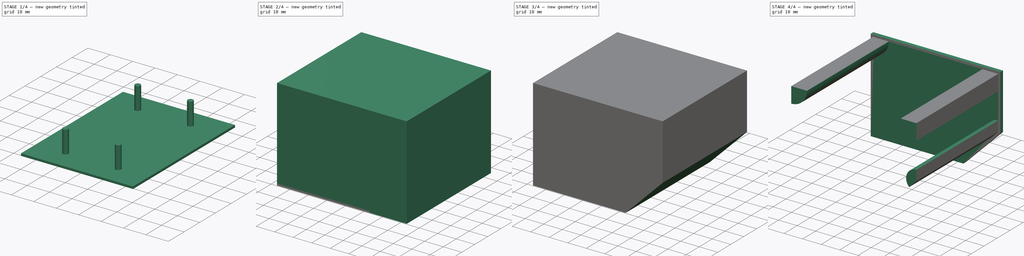
[diagram: build sequence overview — one tinted view per stage of 4, left to right]
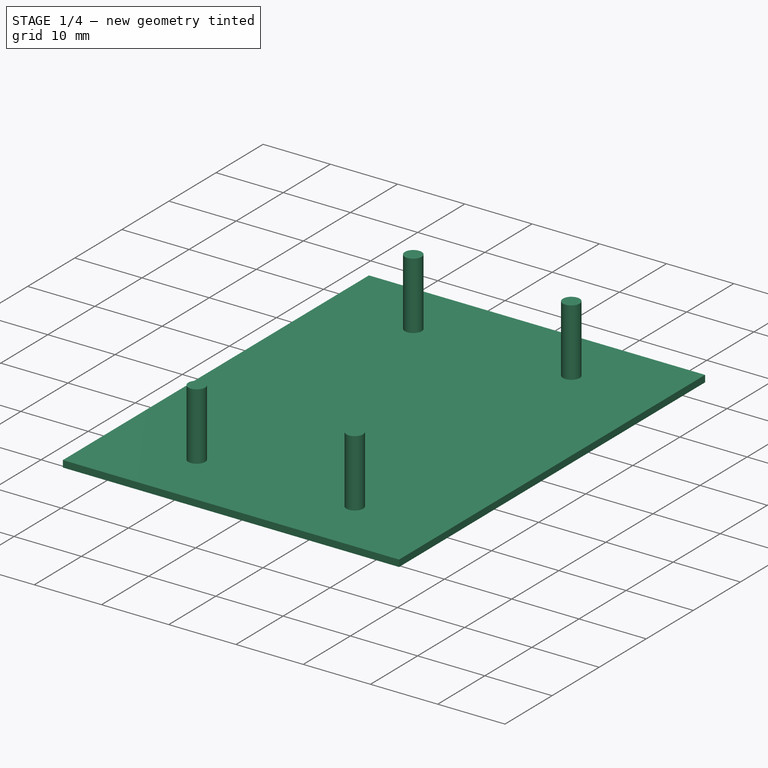
[diagram: stage 1 of 4 — iso view after this stage's code; geometry added in this stage tinted green]
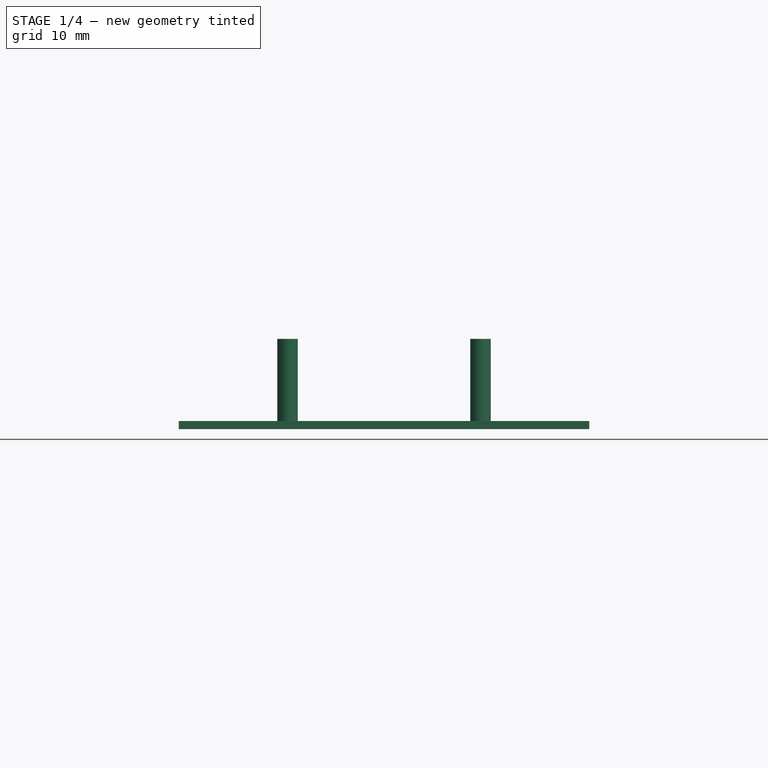
[diagram: stage 1 of 4 — front view after this stage's code; geometry added in this stage tinted green]
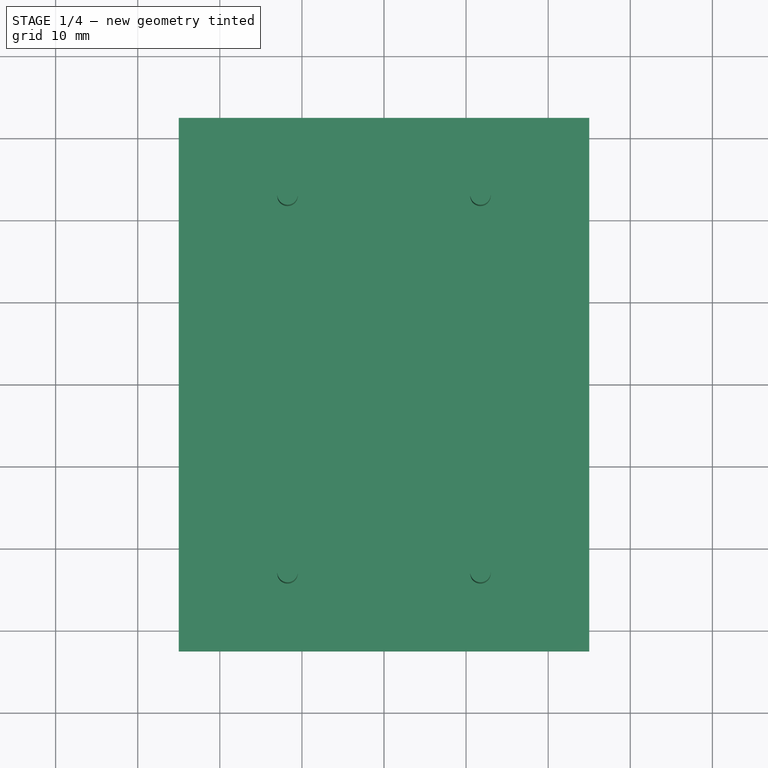
[diagram: stage 1 of 4 — top view after this stage's code; geometry added in this stage tinted green]
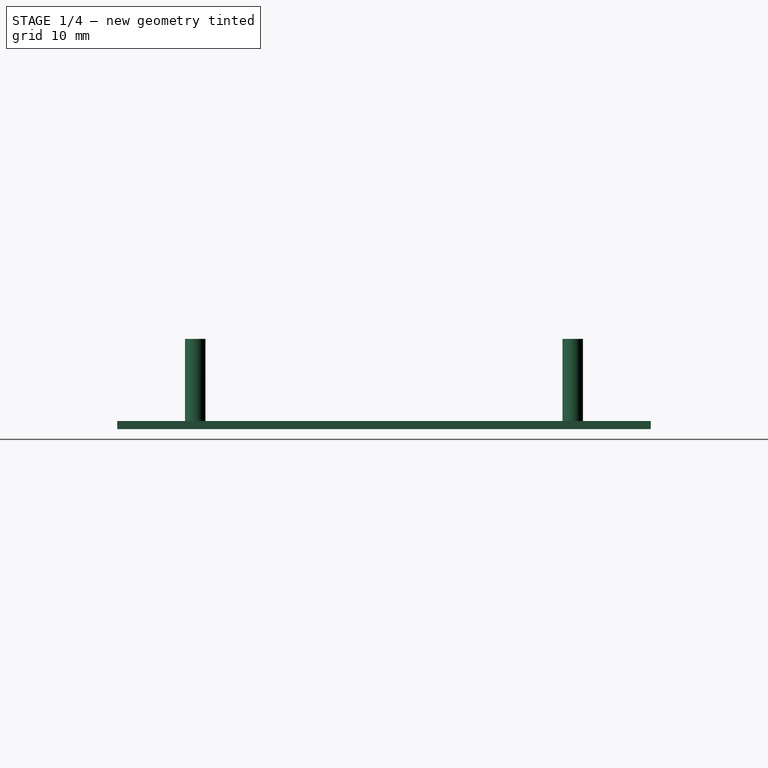
[diagram: stage 1 of 4 — right view after this stage's code; geometry added in this stage tinted green]
FCSTD DOCUMENT  (FreeCAD 0.21R33771 (Git))
Label: puszka esp32
License: All rights reserved
LicenseURL: http://en.wikipedia.org/wiki/All_rights_reserved
objects: Sketcher::SketchObject×9, PartDesign::Pad×9, PartDesign::Plane×2, PartDesign::Body×2, PartDesign::Pocket×1, PartDesign::ShapeBinder×1
note: 34 computed .brp shape members not serialized (recipe doc carries the construction recipe); baked Part::Feature solids carry a one-line shape summary decoded from their .brp

FEATURE [Sketcher::SketchObject] Sketch
  FullyConstrained = true
  MapMode = 5
  Support = -> [XY_Plane]
  sketch-geometry (4):
    g0: Circle CenterX=-11.75 CenterY=23 CenterZ=0 NormalX=0 NormalY=0 NormalZ=1 AngleXU=0 Radius=1.25
    g1: Circle CenterX=11.75 CenterY=23 CenterZ=0 NormalX=0 NormalY=0 NormalZ=1 AngleXU=0 Radius=1.25
    g2: Circle CenterX=-11.75 CenterY=-23 CenterZ=0 NormalX=0 NormalY=0 NormalZ=1 AngleXU=0 Radius=1.25
    g3: Circle CenterX=11.75 CenterY=-23 CenterZ=0 NormalX=0 NormalY=0 NormalZ=1 AngleXU=0 Radius=1.25
  constraints (10):
    c: DistanceX(g0,g1) = 23.5
    c: Horizontal(g0,g1)
    c: Equal(g0,g1)
    c: Equal(g2,g3)
    c: Symmetric(g3,g0,g-1)
    c: Symmetric(g2,g1,g-1)
    c: Vertical(g1,g3)
    c: DistanceY(g3,g1) = 46
    c: Equal(g1,g2)
    c: Diameter(g0) = 2.5
FEATURE [Sketcher::SketchObject] Sketch001
  FullyConstrained = true
  MapMode = 5
  Support = -> [XY_Plane]
  sketch-geometry (5):
    g0: LineSegment StartX=-25 StartY=-32.5 StartZ=0 EndX=-25 EndY=32.5 EndZ=0
    g1: LineSegment StartX=-25 StartY=32.5 StartZ=0 EndX=25 EndY=32.5 EndZ=0
    g2: LineSegment StartX=25 StartY=32.5 StartZ=0 EndX=25 EndY=-32.5 EndZ=0
    g3: LineSegment StartX=25 StartY=-32.5 StartZ=0 EndX=-25 EndY=-32.5 EndZ=0
    g4: GeomPoint X=0 Y=0 Z=0
  constraints (12):
    c: Coincident(g0,g1)
    c: Coincident(g1,g2)
    c: Coincident(g2,g3)
    c: Coincident(g3,g0)
    c: Horizontal(g1)
    c: Horizontal(g3)
    c: Vertical(g0)
    c: Vertical(g2)
    c: Symmetric(g1,g0,g4)
    c: Coincident(g4,g-1)
    c: Distance(g2) = 65
    c: Distance(g1) = 50
FEATURE [PartDesign::Pad] Pad
  Direction = (0,0,1)
  Length = 1
  Length2 = 10
  Profile = -> Sketch001
  ReferenceAxis = -> Sketch001 [N_Axis]
  Reversed = true
  Type = 0
FEATURE [PartDesign::Pad] Pad001
  BaseFeature = -> Pad
  Direction = (0,0,1)
  Length = 10
  Length2 = 10
  Profile = -> Sketch
  ReferenceAxis = -> Sketch [N_Axis]
  Type = 0
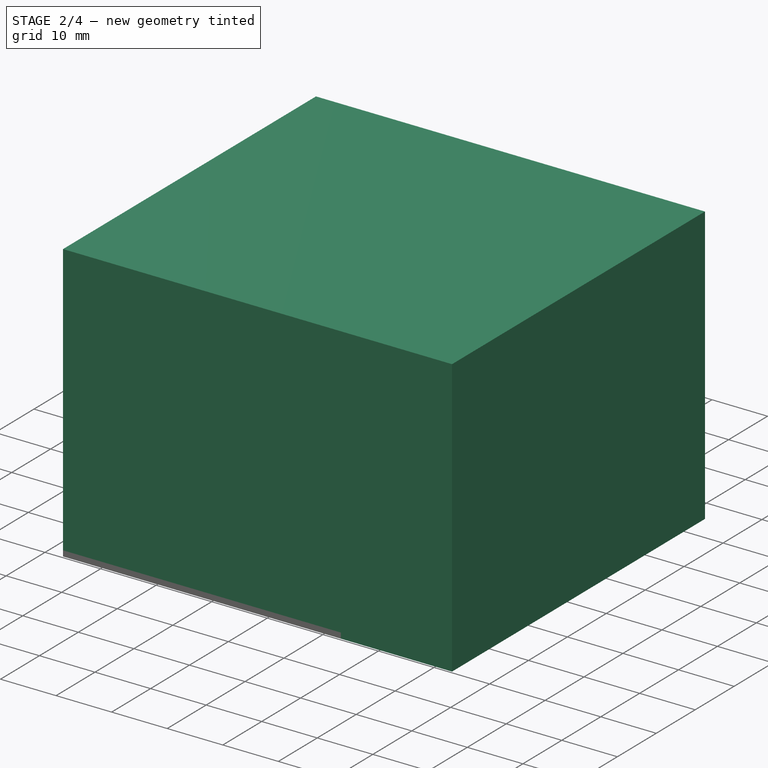
[diagram: stage 2 of 4 — iso view after this stage's code; geometry added in this stage tinted green]
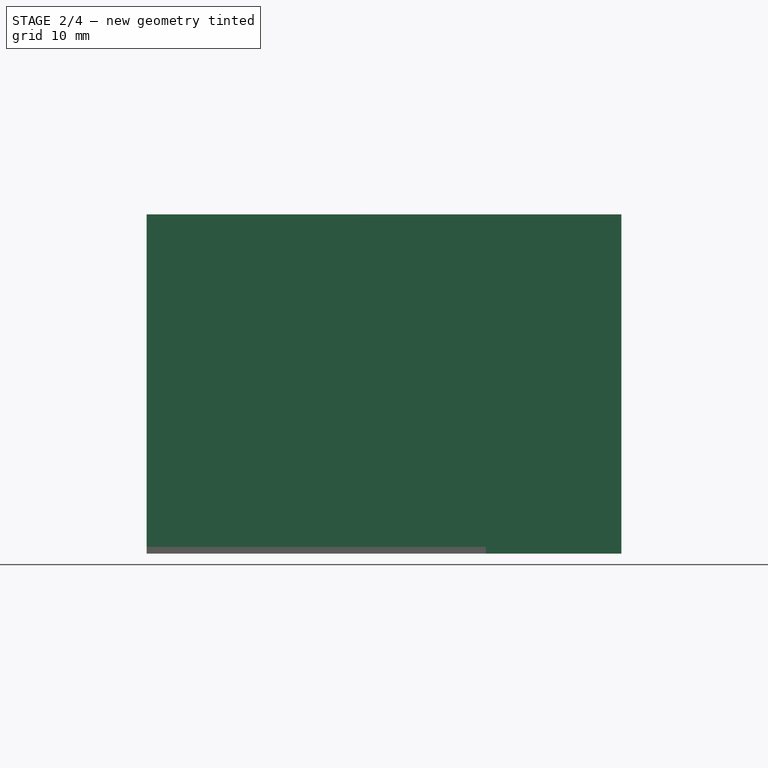
[diagram: stage 2 of 4 — front view after this stage's code; geometry added in this stage tinted green]
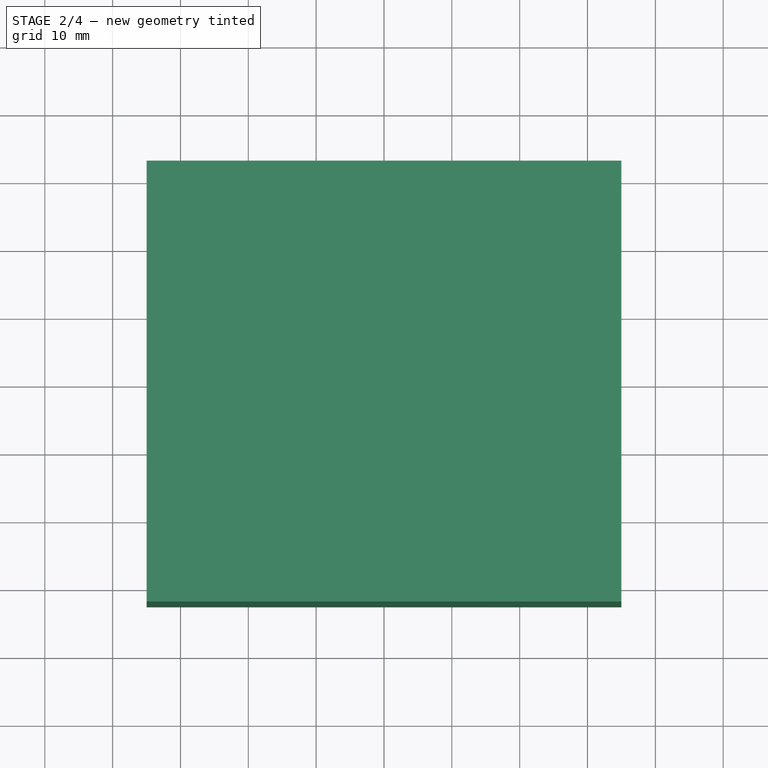
[diagram: stage 2 of 4 — top view after this stage's code; geometry added in this stage tinted green]
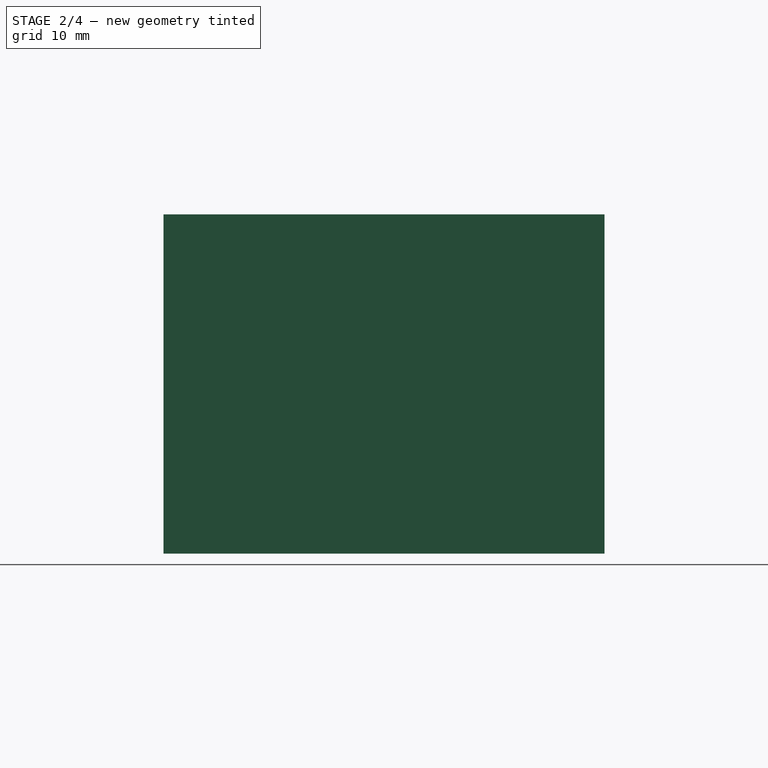
[diagram: stage 2 of 4 — right view after this stage's code; geometry added in this stage tinted green]
FEATURE [PartDesign::Plane] DatumPlane
  AttachmentOffset = pos=(0,0,12) rot=(0,0,1;0rad)
  Length = 83.4907
  MapMode = 5
  Placement = pos=(0,0,12) rot=(0,0,1;0rad)
  ResizeMode = 0
  Support = -> [Pad001]
  Width = 78.4907
FEATURE [PartDesign::Pad] Pad002
  BaseFeature = -> Pad001
  Direction = (1,0,0)
  Length = 20
  Length2 = 10
  Profile = -> Pad001 [Face6]
  Type = 0
FEATURE [Sketcher::SketchObject] Sketch002
  ExternalGeometry = -> [Pad002]
  FullyConstrained = false
  MapMode = 5
  Support = -> [Pad002]
  sketch-geometry (8):
    g0: LineSegment StartX=-25 StartY=-32.5 StartZ=0 EndX=45 EndY=-32.5 EndZ=0
    g1: LineSegment StartX=45 StartY=-32.5 StartZ=0 EndX=45 EndY=32.5 EndZ=0
    g2: LineSegment StartX=45 StartY=32.5 StartZ=0 EndX=44 EndY=32.5 EndZ=0
    g3: LineSegment StartX=-25 StartY=32.5 StartZ=0 EndX=-25 EndY=-32.5 EndZ=0
    g4: LineSegment StartX=-24 StartY=-31.5 StartZ=0 EndX=44 EndY=-31.5 EndZ=0
    g5: LineSegment StartX=44 StartY=-31.5 StartZ=0 EndX=44 EndY=32.5 EndZ=0
    g6: LineSegment StartX=-24 StartY=32.5 StartZ=0 EndX=-24 EndY=-31.5 EndZ=0
    g7: LineSegment StartX=-24 StartY=32.5 StartZ=0 EndX=-25 EndY=32.5 EndZ=0
  constraints (20):
    c: Coincident(g0,g1)
    c: Coincident(g1,g2)
    c: Coincident(g7,g3)
    c: Coincident(g3,g0)
    c: Horizontal(g0)
    c: Horizontal(g2)
    c: Vertical(g1)
    c: Vertical(g3)
    c: Coincident(g0,g-3)
    c: Coincident(g4,g5)
    c: Coincident(g6,g4)
    c: Horizontal(g4)
    c: Vertical(g5)
    c: Vertical(g6)
    c: Distance(g4,g3) = 1
    c: PointOnObject(g6,g2)
    c: Distance(g4,g1) = 1
    c: Distance(g4,g0) = 1
    c: PointOnObject(g7,g6)
    c: PointOnObject(g2,g5)
FEATURE [PartDesign::Pad] Pad003
  BaseFeature = -> Pad002
  Direction = (0,0,1)
  Length = 48
  Length2 = 10
  Profile = -> Sketch002
  ReferenceAxis = -> Sketch002 [N_Axis]
  Type = 0
FEATURE [Sketcher::SketchObject] Sketch003
  ExternalGeometry = -> [Pad003]
  FullyConstrained = true
  MapMode = 5
  Placement = pos=(0,0,48) rot=(0,0,1;0rad)
  Support = -> [Pad003]
  sketch-geometry (4):
    g0: LineSegment StartX=45 StartY=32.5 StartZ=0 EndX=-25 EndY=32.5 EndZ=0
    g1: LineSegment StartX=-25 StartY=32.5 StartZ=0 EndX=-25 EndY=-32.5 EndZ=0
    g2: LineSegment StartX=-25 StartY=-32.5 StartZ=0 EndX=45 EndY=-32.5 EndZ=0
    g3: LineSegment StartX=45 StartY=-32.5 StartZ=0 EndX=45 EndY=32.5 EndZ=0
  constraints (10):
    c: Coincident(g0,g1)
    c: Coincident(g1,g2)
    c: Coincident(g2,g3)
    c: Coincident(g3,g0)
    c: Horizontal(g0)
    c: Horizontal(g2)
    c: Vertical(g1)
    c: Vertical(g3)
    c: Coincident(g0,g-3)
    c: Coincident(g1,g-4)
FEATURE [PartDesign::Pad] Pad004
  BaseFeature = -> Pad003
  Direction = (0,0,1)
  Length = 1
  Length2 = 10
  Profile = -> Sketch003
  ReferenceAxis = -> Sketch003 [N_Axis]
  Type = 0
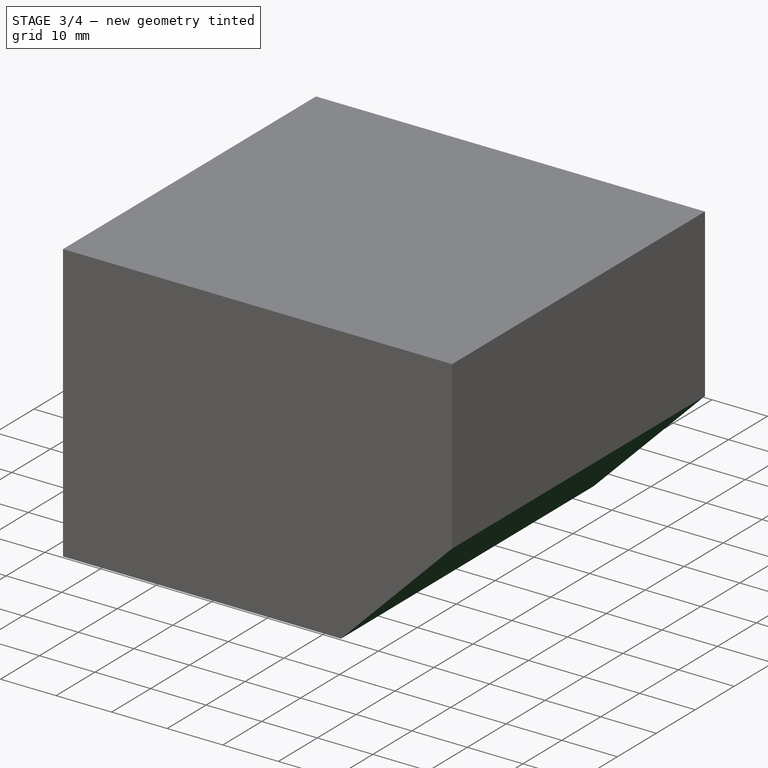
[diagram: stage 3 of 4 — iso view after this stage's code; geometry added in this stage tinted green]
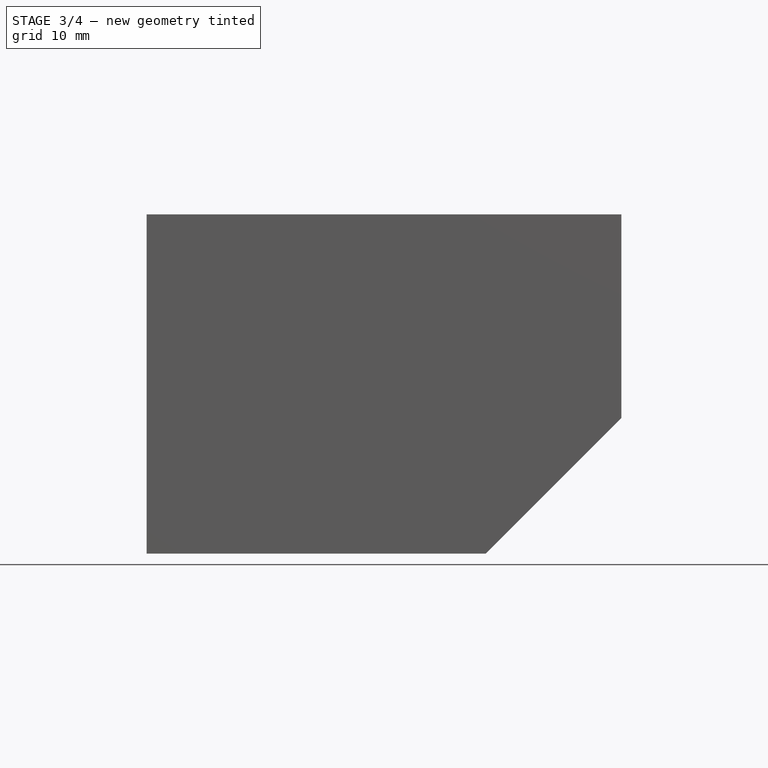
[diagram: stage 3 of 4 — front view after this stage's code; geometry added in this stage tinted green]
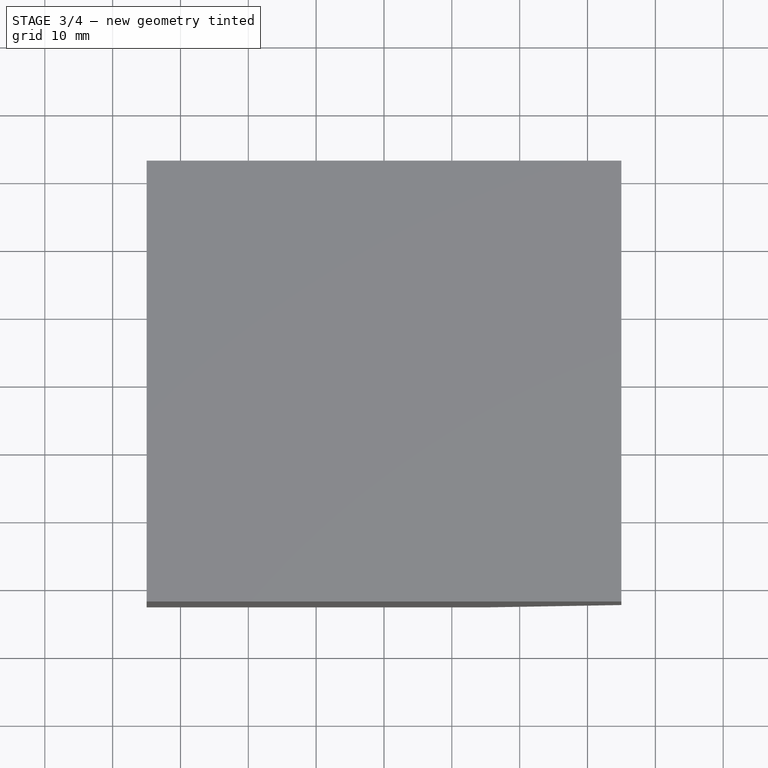
[diagram: stage 3 of 4 — top view after this stage's code; geometry added in this stage tinted green]
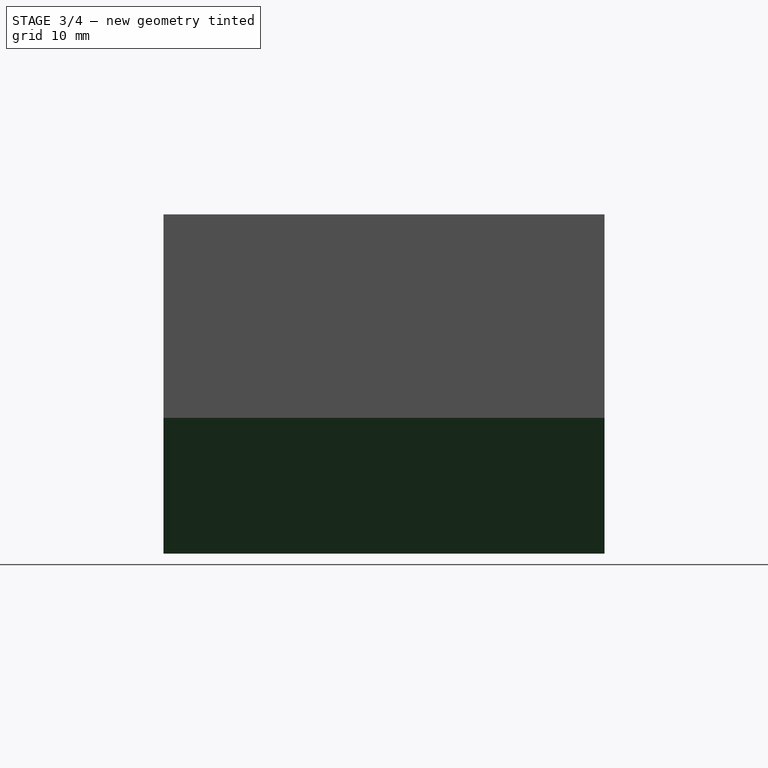
[diagram: stage 3 of 4 — right view after this stage's code; geometry added in this stage tinted green]
FEATURE [Sketcher::SketchObject] Sketch004
  ExternalGeometry = -> [Pad004]
  FullyConstrained = true
  MapMode = 5
  Placement = pos=(0,-32.5,0) rot=(1,0,0;1.5708rad)
  Support = -> [Pad004]
  sketch-geometry (3):
    g0: LineSegment StartX=25 StartY=-1 StartZ=0 EndX=45 EndY=19 EndZ=0
    g1: LineSegment StartX=45 StartY=19 StartZ=0 EndX=45 EndY=-1 EndZ=0
    g2: LineSegment StartX=45 StartY=-1 StartZ=0 EndX=25 EndY=-1 EndZ=0
  constraints (7):
    c: Coincident(g-3,g0)
    c: PointOnObject(g0,g-4)
    c: Coincident(g0,g1)
    c: Coincident(g1,g-3)
    c: Coincident(g1,g2)
    c: Coincident(g2,g0)
    c: Angle(g0,g1) = 0.785398
FEATURE [PartDesign::Pocket] Pocket
  BaseFeature = -> Pad004
  Direction = (0,1,-2e-16)
  Length = 5
  Length2 = 5
  Profile = -> Sketch004
  ReferenceAxis = -> Sketch004 [N_Axis]
  Type = 1
FEATURE [Sketcher::SketchObject] Sketch005
  ExternalGeometry = -> [Pocket]
  FullyConstrained = true
  MapMode = 5
  Placement = pos=(0,-31.5,0) rot=(0,0.707107,0.707107;3.14159rad)
  Support = -> [Pocket]
  sketch-geometry (4):
    g0: LineSegment StartX=-44 StartY=18 StartZ=0 EndX=-26 EndY=1.42e-14 EndZ=0
    g1: LineSegment StartX=-26 StartY=1.42e-14 StartZ=0 EndX=-24.5858 EndY=1.42e-14 EndZ=0
    g2: LineSegment StartX=-24.5858 StartY=1.42e-14 StartZ=0 EndX=-44 EndY=19.4142 EndZ=0
    g3: LineSegment StartX=-44 StartY=19.4142 StartZ=0 EndX=-44 EndY=18 EndZ=0
  constraints (10):
    c: Coincident(g-3,g0)
    c: Coincident(g0,g-5)
    c: Coincident(g0,g1)
    c: PointOnObject(g1,g-4)
    c: Coincident(g1,g2)
    c: PointOnObject(g2,g-3)
    c: Coincident(g2,g3)
    c: Coincident(g3,g0)
    c: Parallel(g2,g0)
    c: Distance(g0,g2) = 1
FEATURE [PartDesign::Pad] Pad005
  BaseFeature = -> Pocket
  Direction = (0,1,-2e-16)
  Length = 64
  Length2 = 10
  Profile = -> Sketch005
  ReferenceAxis = -> Sketch005 [N_Axis]
  Type = 0
FEATURE [Sketcher::SketchObject] Sketch006
  ExternalGeometry = -> [Pad005]
  FullyConstrained = false
  MapMode = 5
  Placement = pos=(0,-31.5,0) rot=(0,0.707107,0.707107;3.14159rad)
  Support = -> [Pad005]
  sketch-geometry (13):
    g0: LineSegment StartX=-10 StartY=48 StartZ=0 EndX=-10 EndY=33.9904 EndZ=0
    g1: ArcOfCircle CenterX=-44 CenterY=19.4142 CenterZ=0 NormalX=0 NormalY=0 NormalZ=1 AngleXU=0 Radius=8 StartAngle=5.49779 EndAngle=7.85398
    g2: ArcOfCircle CenterX=-44 CenterY=19.4142 CenterZ=0 NormalX=0 NormalY=0 NormalZ=1 AngleXU=0 Radius=6 StartAngle=5.49779 EndAngle=7.85398
    g3: LineSegment StartX=-39.7574 StartY=15.1716 StartZ=0 EndX=-38.3431 EndY=13.7574 EndZ=0
    g4: LineSegment StartX=-44 StartY=25.4142 StartZ=0 EndX=-44 EndY=27.4142 EndZ=0
    g5: ArcOfCircle CenterX=-44 CenterY=48 CenterZ=0 NormalX=0 NormalY=0 NormalZ=1 AngleXU=0 Radius=11 StartAngle=4.71239 EndAngle=6.28319
    g6: ArcOfCircle CenterX=-44 CenterY=48 CenterZ=0 NormalX=0 NormalY=0 NormalZ=1 AngleXU=0 Radius=9 StartAngle=4.71239 EndAngle=6.28319
    g7: LineSegment StartX=-44 StartY=39 StartZ=0 EndX=-44 EndY=37 EndZ=0
    g8: LineSegment StartX=-35 StartY=48 StartZ=0 EndX=-33 EndY=48 EndZ=0
    g9: ArcOfCircle CenterX=24 CenterY=48 CenterZ=0 NormalX=0 NormalY=0 NormalZ=1 AngleXU=0 Radius=11 StartAngle=3.14159 EndAngle=4.71239
    g10: ArcOfCircle CenterX=24 CenterY=48 CenterZ=0 NormalX=0 NormalY=0 NormalZ=1 AngleXU=0 Radius=9 StartAngle=3.14159 EndAngle=4.71239
    g11: LineSegment StartX=24 StartY=39 StartZ=0 EndX=24 EndY=37 EndZ=0
    g12: LineSegment StartX=15 StartY=48 StartZ=0 EndX=13 EndY=48 EndZ=0
  constraints (29):
    c: Vertical(g0)
    c: PointOnObject(g1,g-3)
    c: Radius(g1) = 8
    c: Coincident(g2,g1)
    c: PointOnObject(g2,g-3)
    c: Coincident(g3,g2)
    c: Coincident(g3,g1)
    c: Coincident(g4,g2)
    c: Coincident(g4,g1)
    c: Distance(g4) = 2
    c: Coincident(g5,g-6)
    c: PointOnObject(g5,g-5)
    c: PointOnObject(g5,g-6)
    c: Coincident(g6,g5)
    c: PointOnObject(g6,g-5)
    c: PointOnObject(g6,g-6)
    c: Coincident(g7,g6)
    c: Coincident(g7,g5)
    c: Coincident(g8,g6)
    c: Coincident(g8,g5)
    c: Distance(g8) = 2
    c: Radius(g6) = 9
    c: Coincident(g10,g9)
    c: Coincident(g11,g10)
    c: Coincident(g11,g9)
    c: Coincident(g12,g10)
    c: Coincident(g12,g9)
    c: Distance(g12) = 2
    c: Radius(g10) = 9
FEATURE [PartDesign::Pad] Pad006
  BaseFeature = -> Pad005
  Direction = (0,1,-2e-16)
  Length = 64
  Length2 = 10
  Profile = -> Sketch006
  ReferenceAxis = -> Sketch006 [N_Axis]
  Type = 0
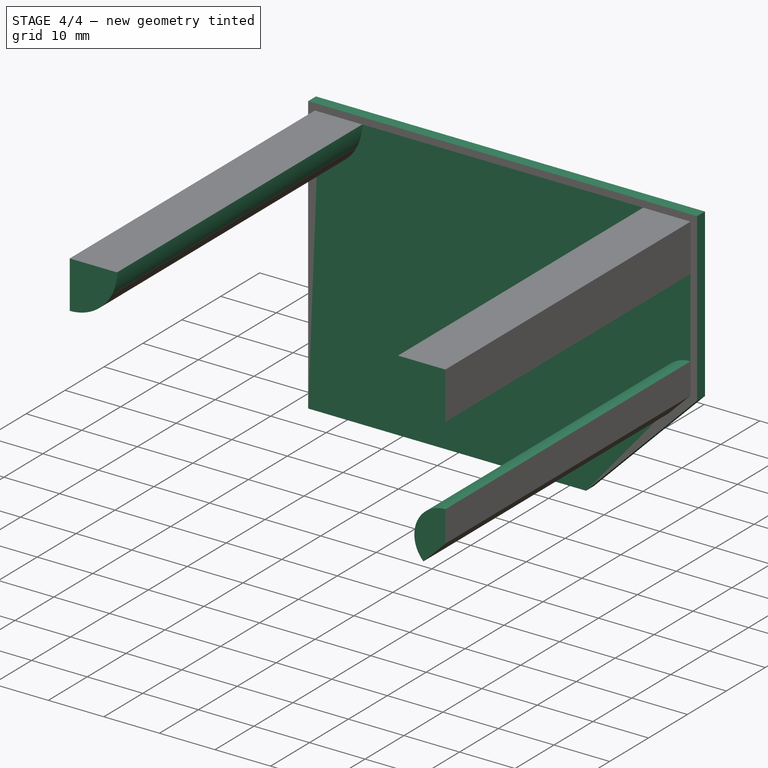
[diagram: stage 4 of 4 — iso view after this stage's code; geometry added in this stage tinted green]
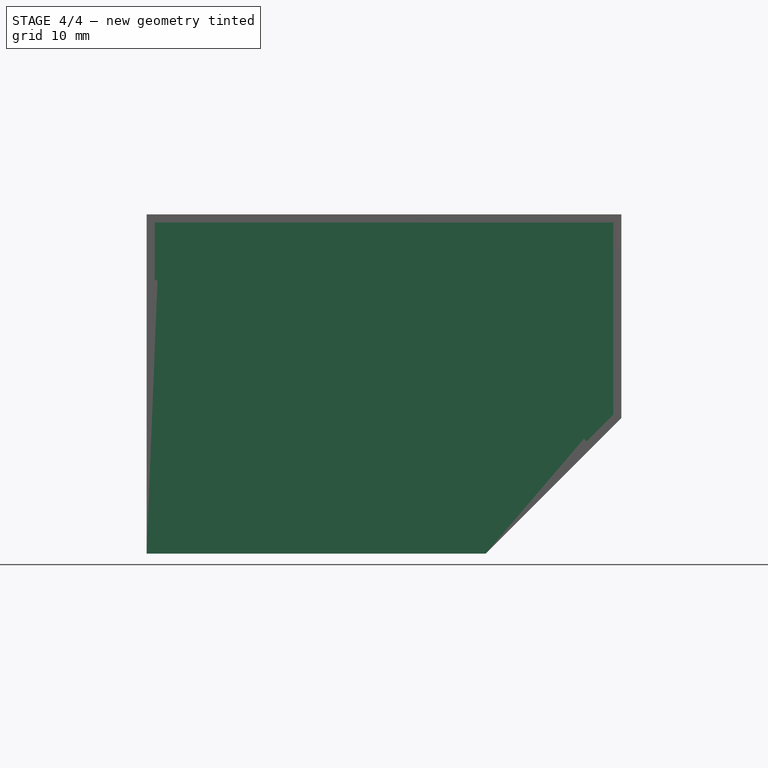
[diagram: stage 4 of 4 — front view after this stage's code; geometry added in this stage tinted green]
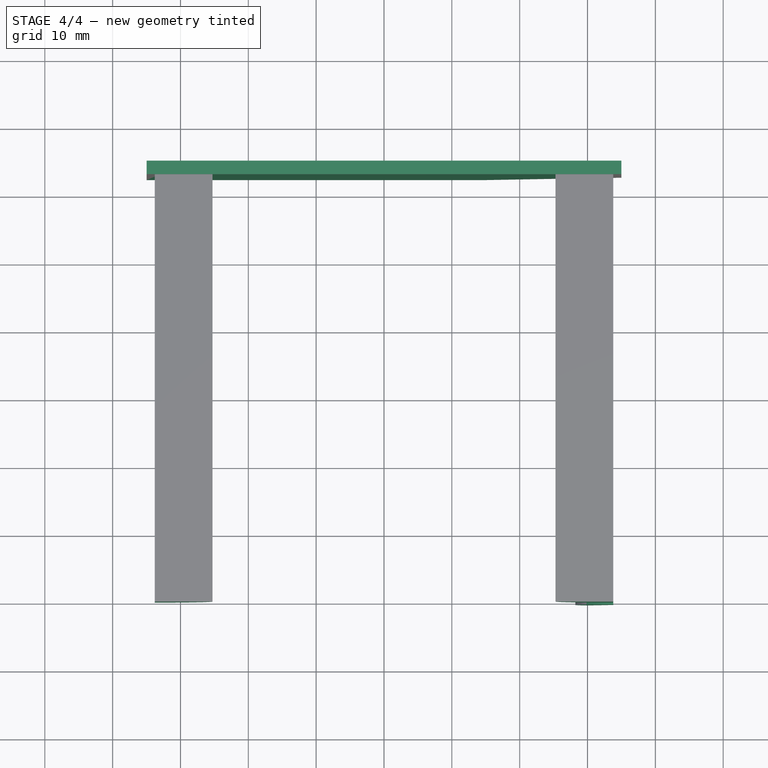
[diagram: stage 4 of 4 — top view after this stage's code; geometry added in this stage tinted green]
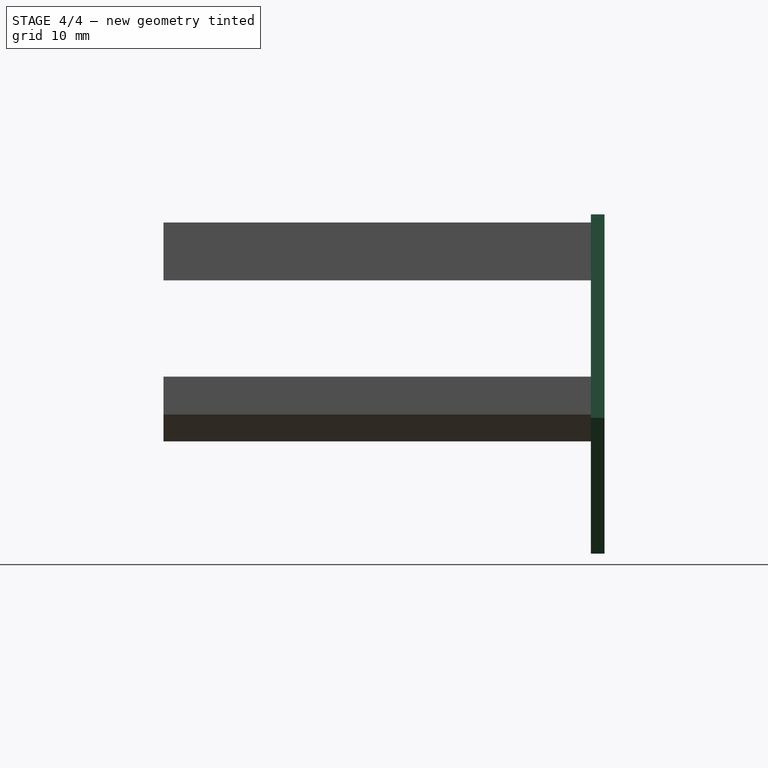
[diagram: stage 4 of 4 — right view after this stage's code; geometry added in this stage tinted green]
FEATURE [PartDesign::Body] Body  label="puszka"
  Group = -> [Sketch,Sketch001,Pad,Pad001,DatumPlane,Pad002,Sketch002,Pad003,Sketch003,Pad004,Sketch004,Pocket,Sketch005,Pad005,Sketch006,Pad006]
  Origin = -> Origin
  Tip = -> Pad006
FEATURE [PartDesign::ShapeBinder] ShapeBinder
  Support = -> [Pad006]
  TraceSupport = false
FEATURE [PartDesign::Plane] DatumPlane001
  AttachmentOffset = pos=(0,32.5,0) rot=(1,0,0;1.5708rad)
  Length = 84.3944
  MapMode = 2
  Placement = pos=(0,32.5,0) rot=(1,0,0;1.5708rad)
  ResizeMode = 0
  Support = -> [ShapeBinder]
  Width = 88.3945
FEATURE [Sketcher::SketchObject] Sketch007
  ExternalGeometry = -> [ShapeBinder]
  FullyConstrained = true
  MapMode = 5
  Placement = pos=(0,32.5,0) rot=(1,0,0;1.5708rad)
  Support = -> [DatumPlane001]
  sketch-geometry (5):
    g0: LineSegment StartX=45 StartY=19 StartZ=0 EndX=45 EndY=49 EndZ=0
    g1: LineSegment StartX=45 StartY=49 StartZ=0 EndX=-25 EndY=49 EndZ=0
    g2: LineSegment StartX=-25 StartY=49 StartZ=0 EndX=-25 EndY=-1 EndZ=0
    g3: LineSegment StartX=-25 StartY=-1 StartZ=0 EndX=25 EndY=-1 EndZ=0
    g4: LineSegment StartX=25 StartY=-1 StartZ=0 EndX=45 EndY=19 EndZ=0
  constraints (10):
    c: Coincident(g-3,g0)
    c: Coincident(g0,g-4)
    c: Coincident(g0,g1)
    c: Coincident(g1,g-4)
    c: Coincident(g1,g2)
    c: Coincident(g2,g-5)
    c: Coincident(g2,g3)
    c: Coincident(g3,g-5)
    c: Coincident(g3,g4)
    c: Coincident(g4,g0)
FEATURE [PartDesign::Pad] Pad007
  Direction = (0,-1,2e-16)
  Length = 2
  Length2 = 10
  Placement = pos=(0,32.5,0) rot=(1,0,0;1.5708rad)
  Profile = -> Sketch007
  ReferenceAxis = -> Sketch007 [N_Axis]
  Reversed = true
  Type = 0
FEATURE [Sketcher::SketchObject] Sketch008
  ExternalGeometry = -> [ShapeBinder]
  FullyConstrained = false
  MapMode = 5
  Placement = pos=(0,32.5,0) rot=(1,0,0;1.5708rad)
  Support = -> [Pad007]
  sketch-geometry (17):
    g0: ArcOfCircle CenterX=-23.8 CenterY=47.8 CenterZ=0 NormalX=0 NormalY=0 NormalZ=1 AngleXU=0 Radius=8.51716 StartAngle=4.71239 EndAngle=6.28319
    g1: LineSegment StartX=-23.8 StartY=47.8 StartZ=0 EndX=-15.2828 EndY=47.8 EndZ=0
    g2: LineSegment StartX=-23.8 StartY=39.2828 StartZ=0 EndX=-23.8 EndY=47.8 EndZ=0
    g3: LineSegment StartX=-23.8 StartY=47.8 StartZ=0 EndX=-17.636 EndY=41.636 EndZ=0
    g4: GeomPoint X=-17.7775 Y=41.7775 Z=0
    g5: LineSegment StartX=10 StartY=48 StartZ=0 EndX=10 EndY=33.5129 EndZ=0
    g6: ArcOfCircle CenterX=43.8 CenterY=47.8 CenterZ=0 NormalX=0 NormalY=0 NormalZ=1 AngleXU=0 Radius=8.51716 StartAngle=3.14159 EndAngle=4.71239
    g7: LineSegment StartX=43.8 StartY=47.8 StartZ=0 EndX=35.2828 EndY=47.8 EndZ=0
    g8: LineSegment StartX=43.8 StartY=39.2828 StartZ=0 EndX=43.8 EndY=47.8 EndZ=0
    g9: LineSegment StartX=43.8 StartY=47.8 StartZ=0 EndX=37.636 EndY=41.636 EndZ=0
    g10: GeomPoint X=37.7775 Y=41.7775 Z=0
    g11: ArcOfCircle CenterX=43.8 CenterY=19.4971 CenterZ=0 NormalX=0 NormalY=0 NormalZ=1 AngleXU=0 Radius=5.58352 StartAngle=1.5708 EndAngle=3.92699
    g12: LineSegment StartX=43.8 StartY=25.0806 StartZ=0 EndX=43.8 EndY=19.4971 EndZ=0
    g13: LineSegment StartX=43.8 StartY=19.4971 StartZ=0 EndX=39.8519 EndY=15.5489 EndZ=0
    g14: LineSegment StartX=43.8 StartY=19.4971 StartZ=0 EndX=38.4567 EndY=21.7103 EndZ=0
    g15: GeomPoint X=41.8259 Y=20.3147 Z=0
    g16: GeomPoint X=38.6415 Y=21.6338 Z=0
  constraints (42):
    c: Coincident(g1,g0)
    c: Coincident(g1,g0)
    c: Coincident(g2,g0)
    c: Coincident(g2,g0)
    c: Vertical(g2)
    c: Horizontal(g1)
    c: Coincident(g3,g0)
    c: PointOnObject(g3,g-3)
    c: Angle(g3,g1) = 0.785398
    c: PointOnObject(g4,g3)
    c: PointOnObject(g4,g0)
    c: Distance(g4,g3) = 0.2
    c: Distance(g0,g-4) = 0.2
    c: Distance(g3,g-5) = 0.2
    c: Vertical(g5)
    c: Symmetric(g-5,g-6,g5)
    c: Coincident(g7,g6)
    c: Coincident(g7,g6)
    c: Coincident(g8,g6)
    c: Coincident(g8,g6)
    c: Vertical(g8)
    c: Horizontal(g7)
    c: Coincident(g9,g6)
    c: Angle(g9,g7) = -0.785398
    c: PointOnObject(g10,g9)
    c: PointOnObject(g10,g6)
    c: Distance(g10,g9) = 0.2
    c: Coincident(g12,g11)
    c: Coincident(g12,g11)
    c: Vertical(g12)
    c: Coincident(g13,g11)
    c: Coincident(g13,g11)
    c: Distance(g11,g-9) = 0.2
    c: Parallel(g13,g-9)
    c: Distance(g11,g-8) = 0.2
    c: Coincident(g14,g11)
    c: PointOnObject(g14,g-7)
    c: PointOnObject(g15,g14)
    c: Symmetric(g11,g11,g15)
    c: PointOnObject(g16,g14)
    c: PointOnObject(g16,g11)
    c: Distance(g14,g16) = 0.2
FEATURE [PartDesign::Pad] Pad008
  BaseFeature = -> Pad007
  Direction = (0,-1,4e-16)
  Length = 63
  Length2 = 10
  Placement = pos=(0,32.5,0) rot=(1,0,0;1.5708rad)
  Profile = -> Sketch008
  ReferenceAxis = -> Sketch008 [N_Axis]
  Type = 0
FEATURE [PartDesign::Body] Body001  label="przykrywka"
  Group = -> [ShapeBinder,DatumPlane001,Sketch007,Pad007,Sketch008,Pad008]
  Origin = -> Origin001
  Placement = pos=(0,124,0) rot=(0,0,1;0rad)
  Tip = -> Pad008
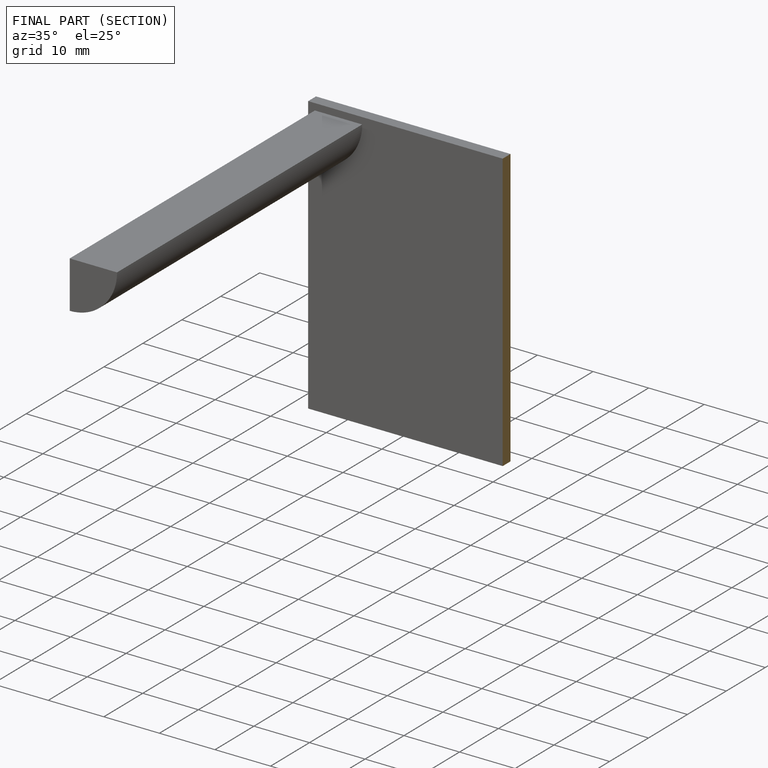
[diagram: finished part — half-section view (interior)]
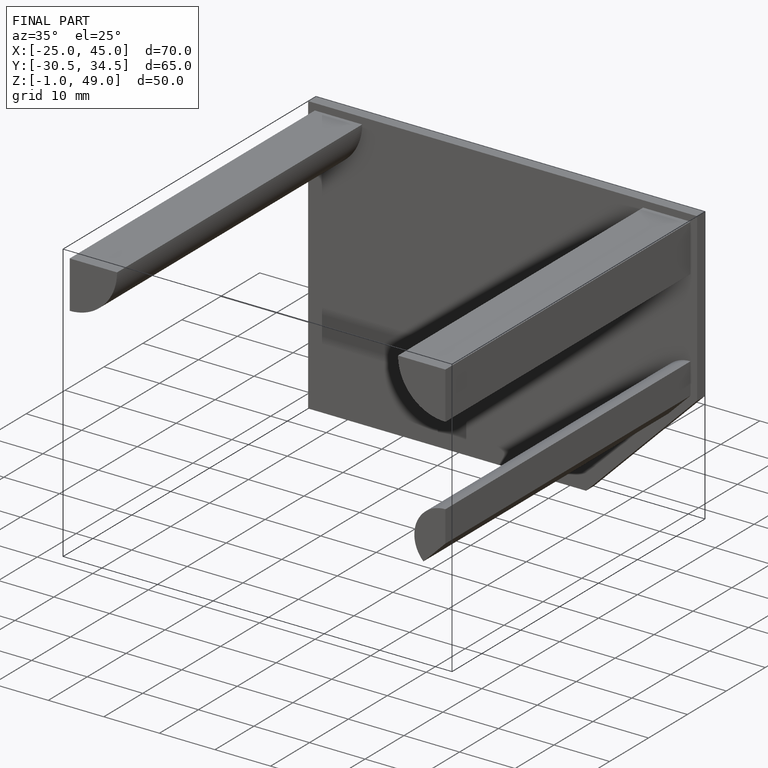
[diagram: finished part — iso view with bounding-box wireframe]
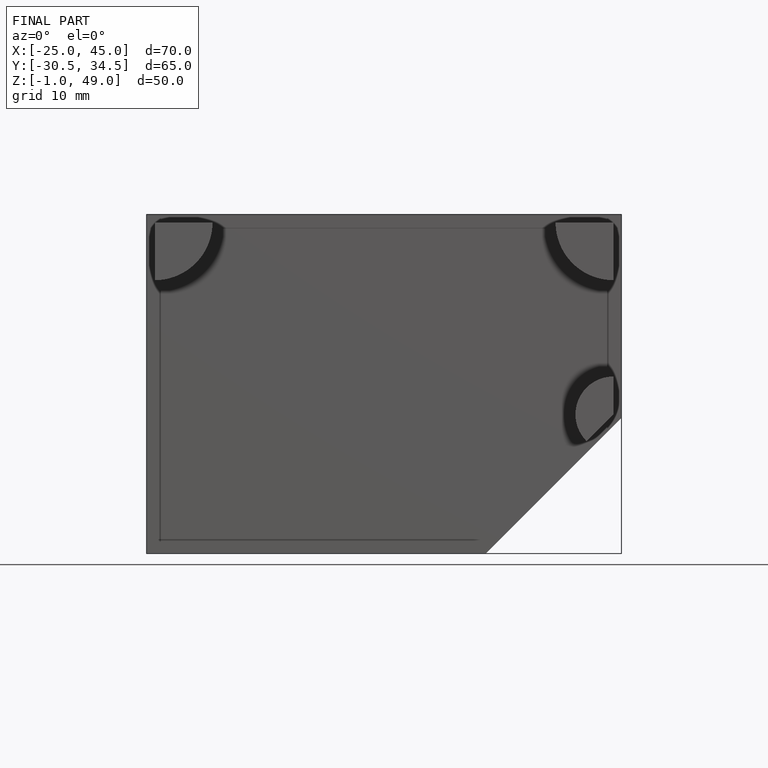
[diagram: finished part — front view with bounding-box wireframe]
